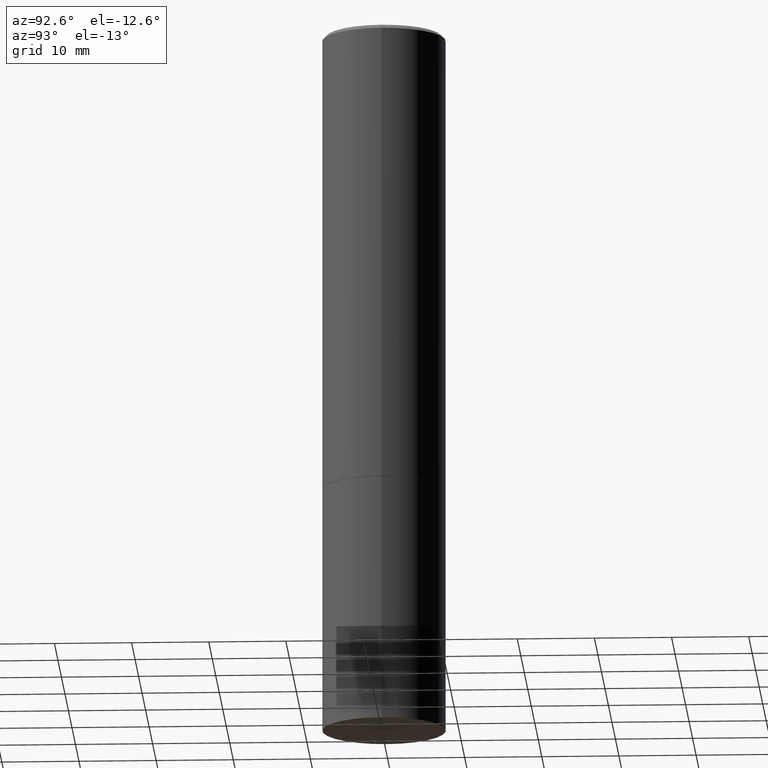
[diagram: clean part render]
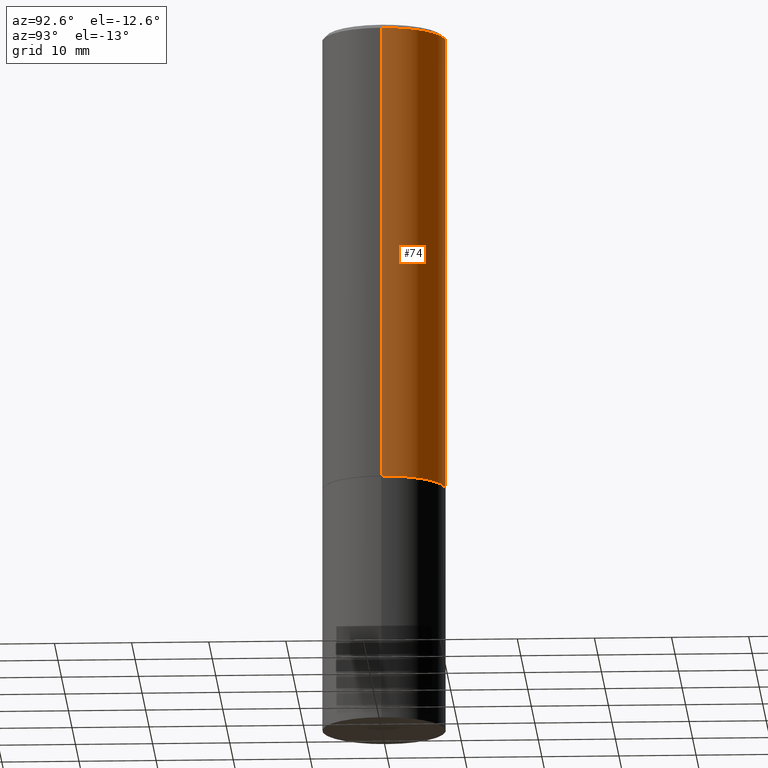
[diagram: same view with one face highlighted and labeled with its STEP entity id]
A machine part, auxiliary view. The second image highlights one B-rep face of the part: STEP entity #74.
In plain terms, the highlighted cylindrical surface (partial cylindrical patch) has radius 7.9997 mm, axis along (-0, 0, 1).
Its self-contained STEP definition (entity closure, byte-faithful):
#5 = DIRECTION ( 'NONE',  ( -2.445468806185136597E-29, 3.491481338843145583E-15, 1.000000000000000000 ) ) ;
#6 = ORIENTED_EDGE ( 'NONE', *, *, #262, .F. ) ;
#11 = AXIS2_PLACEMENT_3D ( 'NONE', #119, #232, #284 ) ;
#29 = DIRECTION ( 'NONE',  ( 1.000000000000000000, -6.982962677686265922E-15, 4.876176775795935232E-29 ) ) ;
#38 = ORIENTED_EDGE ( 'NONE', *, *, #320, .T. ) ;
#72 = CIRCLE ( 'NONE', #250, 0.3149500000000000077 ) ;
#74 = ADVANCED_FACE ( 'NONE', ( #267 ), #249, .T. ) ;
#90 = DIRECTION ( 'NONE',  ( -2.445468806185136597E-29, 3.491481338843145583E-15, 1.000000000000000000 ) ) ;
#104 = AXIS2_PLACEMENT_3D ( 'NONE', #269, #5, #29 ) ;
#114 = DIRECTION ( 'NONE',  ( 1.000000000000000000, -6.982962677686263555E-15, 0.000000000000000000 ) ) ;
#119 = CARTESIAN_POINT ( 'NONE',  ( 4.890937612370288047E-31, -6.982962677686311331E-17, -0.02000000000000005940 ) ) ;
#143 = EDGE_CURVE ( 'NONE', #210, #287, #72, .T. ) ;
#146 = VERTEX_POINT ( 'NONE', #200 ) ;
#149 = ORIENTED_EDGE ( 'NONE', *, *, #143, .T. ) ;
#156 = CARTESIAN_POINT ( 'NONE',  ( -0.3149499999999997302, 2.129454468560424601E-15, -0.02000000000000005940 ) ) ;
#168 = CIRCLE ( 'NONE', #11, 0.3149499999999997302 ) ;
#178 = CARTESIAN_POINT ( 'NONE',  ( -0.3149500000000000077, -1.919103335750211213E-15, -2.361199999999999743 ) ) ;
#186 = DIRECTION ( 'NONE',  ( -2.445468806185136877E-29, 3.491481338843145188E-15, 1.000000000000000000 ) ) ;
#200 = CARTESIAN_POINT ( 'NONE',  ( 0.3149499999999997302, -2.230543471175005478E-15, -0.02000000000000005940 ) ) ;
#206 = ORIENTED_EDGE ( 'NONE', *, *, #289, .F. ) ;
#208 = VERTEX_POINT ( 'NONE', #156 ) ;
#210 = VERTEX_POINT ( 'NONE', #257 ) ;
#215 = LINE ( 'NONE', #324, #221 ) ;
#220 = DIRECTION ( 'NONE',  ( -2.445468806185136877E-29, 3.491481338843145188E-15, 1.000000000000000000 ) ) ;
#221 = VECTOR ( 'NONE', #186, 39.37007874015748143 ) ;
#229 = LINE ( 'NONE', #356, #302 ) ;
#232 = DIRECTION ( 'NONE',  ( -2.445468806185136597E-29, 3.491481338843145583E-15, 1.000000000000000000 ) ) ;
#249 = CYLINDRICAL_SURFACE ( 'NONE', #104, 0.3149499999999998967 ) ;
#250 = AXIS2_PLACEMENT_3D ( 'NONE', #334, #90, #114 ) ;
#257 = CARTESIAN_POINT ( 'NONE',  ( 0.3149500000000000077, -1.044336983261372333E-14, -2.361199999999999743 ) ) ;
#262 = EDGE_CURVE ( 'NONE', #210, #146, #215, .T. ) ;
#267 = FACE_OUTER_BOUND ( 'NONE', #345, .T. ) ;
#269 = CARTESIAN_POINT ( 'NONE',  ( 0.000000000000000000, 0.000000000000000000, 0.000000000000000000 ) ) ;
#284 = DIRECTION ( 'NONE',  ( 1.000000000000000000, -6.982962677686266711E-15, 0.000000000000000000 ) ) ;
#287 = VERTEX_POINT ( 'NONE', #178 ) ;
#289 = EDGE_CURVE ( 'NONE', #146, #208, #168, .T. ) ;
#302 = VECTOR ( 'NONE', #220, 39.37007874015748143 ) ;
#320 = EDGE_CURVE ( 'NONE', #287, #208, #229, .T. ) ;
#324 = CARTESIAN_POINT ( 'NONE',  ( 0.3149499999999998967, -2.199284095337288688E-15, 1.535751875536929289E-29 ) ) ;
#334 = CARTESIAN_POINT ( 'NONE',  ( 5.774240945164344150E-29, -8.244085737276433464E-15, -2.361199999999999743 ) ) ;
#345 = EDGE_LOOP ( 'NONE', ( #149, #38, #206, #6 ) ) ;
#356 = CARTESIAN_POINT ( 'NONE',  ( -0.3149499999999998967, 2.237854346276434801E-15, -1.549218606675782116E-29 ) ) ;